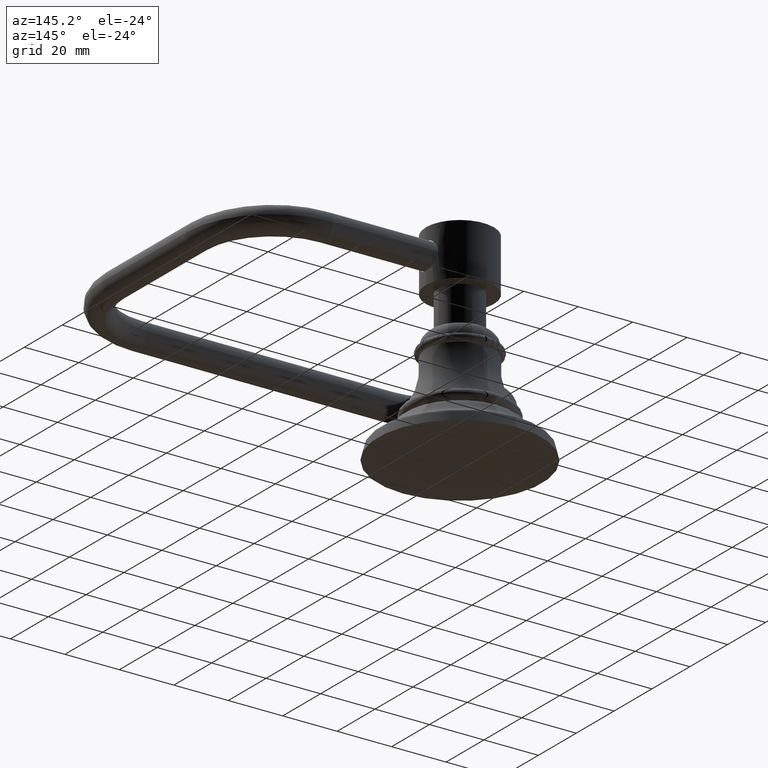
[diagram: clean part render]
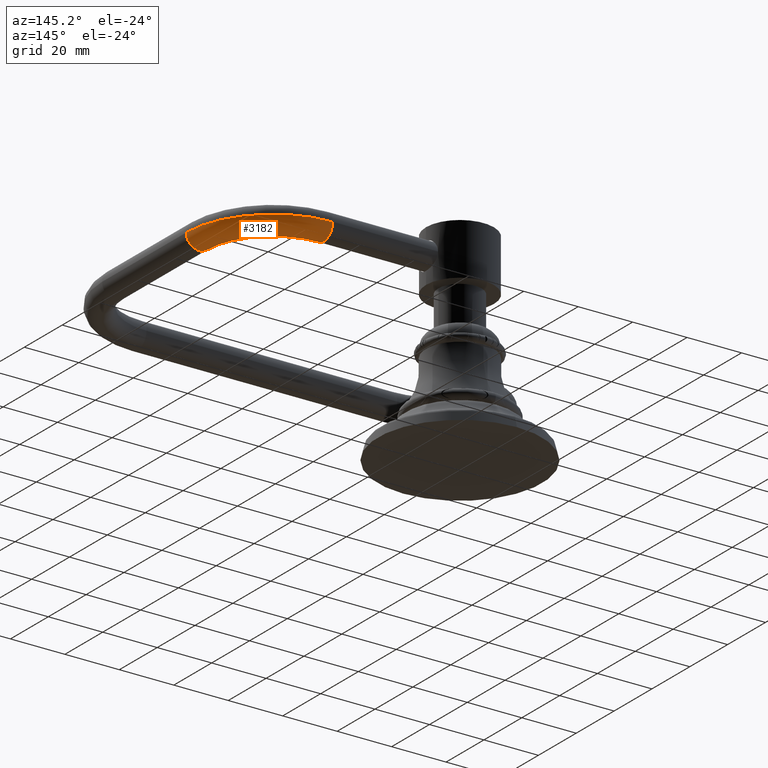
[diagram: same view with one face highlighted and labeled with its STEP entity id]
A machine part, auxiliary view. The second image highlights one B-rep face of the part: STEP entity #3182.
In plain terms, the highlighted toroidal blend (fillet) surface has major radius 26.9875 mm and minor (blend) radius 4.7625 mm.
Its self-contained STEP definition (entity closure, byte-faithful):
#2902=CARTESIAN_POINT('',(1.969E0,-1.0625E0,2.531E0));
#2903=DIRECTION('',(0.E0,0.E0,-1.E0));
#2904=DIRECTION('',(0.E0,1.E0,0.E0));
#2905=AXIS2_PLACEMENT_3D('',#2902,#2903,#2904);
#2907=CARTESIAN_POINT('',(1.969E0,0.E0,2.531E0));
#2908=DIRECTION('',(1.E0,0.E0,0.E0));
#2909=DIRECTION('',(0.E0,-1.E0,0.E0));
#2910=AXIS2_PLACEMENT_3D('',#2907,#2908,#2909);
#2912=CARTESIAN_POINT('',(1.969E0,-1.0625E0,2.531E0));
#2913=DIRECTION('',(0.E0,0.E0,-1.E0));
#2914=DIRECTION('',(0.E0,1.E0,0.E0));
#2915=AXIS2_PLACEMENT_3D('',#2912,#2913,#2914);
#2917=CARTESIAN_POINT('',(3.0315E0,-1.0625E0,2.531E0));
#2918=DIRECTION('',(0.E0,-1.E0,0.E0));
#2919=DIRECTION('',(-1.E0,0.E0,0.E0));
#2920=AXIS2_PLACEMENT_3D('',#2917,#2918,#2919);
#3051=CARTESIAN_POINT('',(1.969E0,-1.875E-1,2.531E0));
#3052=CARTESIAN_POINT('',(1.969E0,1.875E-1,2.531E0));
#3053=VERTEX_POINT('',#3051);
#3054=VERTEX_POINT('',#3052);
#3055=CARTESIAN_POINT('',(2.844E0,-1.0625E0,2.531E0));
#3056=CARTESIAN_POINT('',(3.219E0,-1.0625E0,2.531E0));
#3057=VERTEX_POINT('',#3055);
#3058=VERTEX_POINT('',#3056);
#3170=CARTESIAN_POINT('',(1.969E0,-1.0625E0,2.531E0));
#3171=DIRECTION('',(0.E0,0.E0,-1.E0));
#3172=DIRECTION('',(0.E0,-1.E0,0.E0));
#3173=AXIS2_PLACEMENT_3D('',#3170,#3171,#3172);
#3174=TOROIDAL_SURFACE('',#3173,1.0625E0,1.875E-1);
#3175=ORIENTED_EDGE('',*,*,#3104,.F.);
#3176=ORIENTED_EDGE('',*,*,#3165,.T.);
#3178=ORIENTED_EDGE('',*,*,#3177,.T.);
#3179=ORIENTED_EDGE('',*,*,#3161,.F.);
#3180=EDGE_LOOP('',(#3175,#3176,#3178,#3179));
#3181=FACE_OUTER_BOUND('',#3180,.F.);
#3182=ADVANCED_FACE('',(#3181),#3174,.T.);
#2906=CIRCLE('',#2905,1.25E0);
#2911=CIRCLE('',#2910,1.875E-1);
#2916=CIRCLE('',#2915,8.75E-1);
#2921=CIRCLE('',#2920,1.875E-1);
#3104=EDGE_CURVE('',#3053,#3054,#2911,.T.);
#3161=EDGE_CURVE('',#3054,#3058,#2906,.T.);
#3165=EDGE_CURVE('',#3053,#3057,#2916,.T.);
#3177=EDGE_CURVE('',#3057,#3058,#2921,.T.);